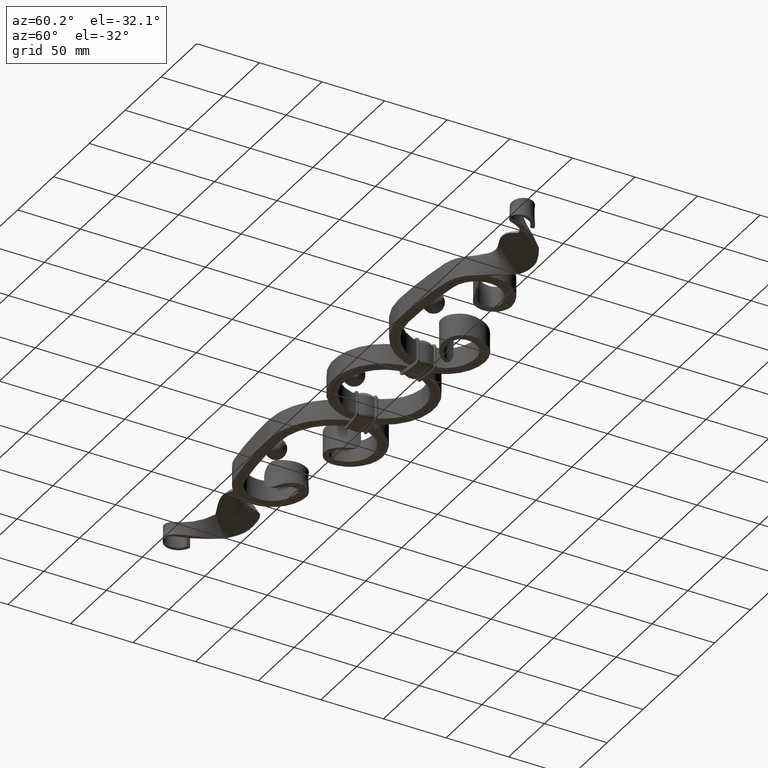
[diagram: clean part render]
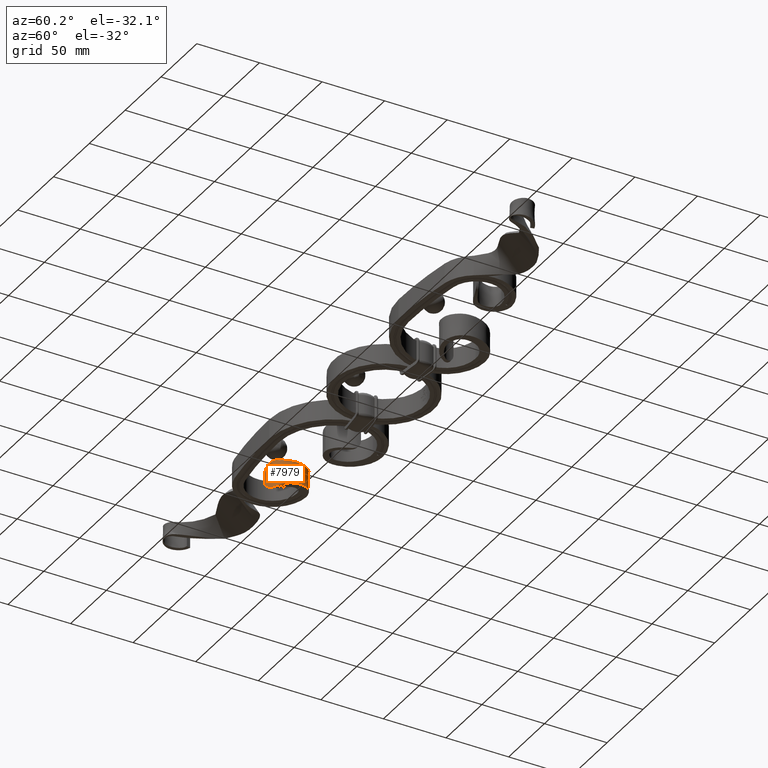
[diagram: same view with one face highlighted and labeled with its STEP entity id]
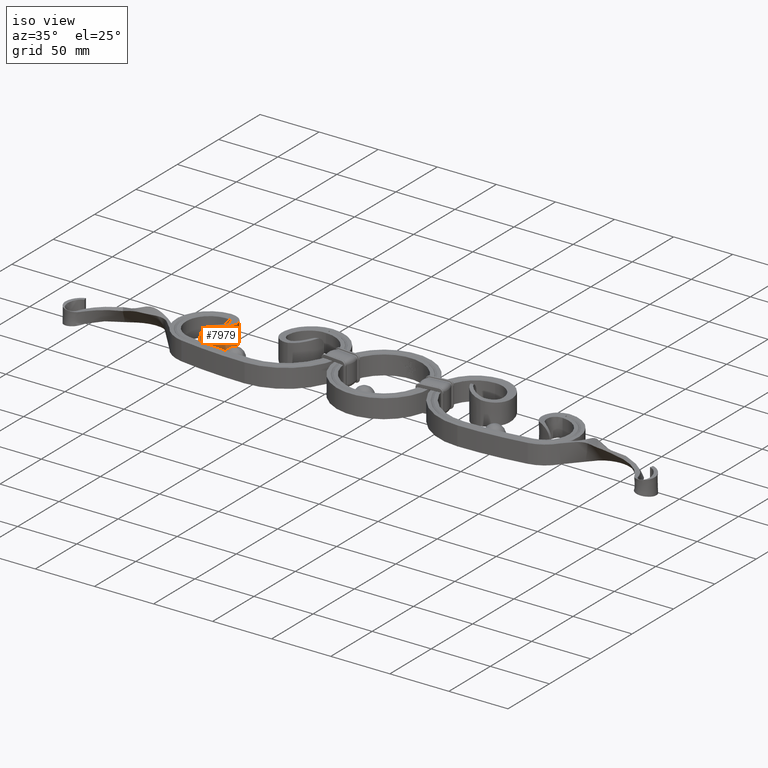
[diagram: same view with one face highlighted and labeled with its STEP entity id]
A machine part, auxiliary view. The second image highlights one B-rep face of the part: STEP entity #7979.
A second angle (iso view) of the same face is appended — the face is thin or edge-on in the first view.
In plain terms, the highlighted face is a freeform B-spline surface patch.
Its self-contained STEP definition (entity closure, byte-faithful):
#163 = CARTESIAN_POINT ( 'NONE',  ( -142.5820581351199507, -10.03990142041499034, 9.756518176342892090 ) ) ;
#231 = EDGE_LOOP ( 'NONE', ( #5789, #15579, #11772, #6545, #10943, #2353 ) ) ;
#237 = CARTESIAN_POINT ( 'NONE',  ( -143.0000000000000568, 19.99999999999979750, 7.999999999999992895 ) ) ;
#595 = CARTESIAN_POINT ( 'NONE',  ( -141.8930504535362047, -9.821205038435795842, -10.05455148957163836 ) ) ;
#738 = CARTESIAN_POINT ( 'NONE',  ( -134.9914572036392713, -7.643945574774448914, -9.602943142004265908 ) ) ;
#860 = CARTESIAN_POINT ( 'NONE',  ( -147.5508759720489707, -10.95988479929395254, -3.916098386823894550 ) ) ;
#1042 = B_SPLINE_CURVE_WITH_KNOTS ( 'NONE', 3,
 ( #1998, #4293, #6097, #8077, #15726, #17999, #23686 ),
 .UNSPECIFIED., .F., .F.,
 ( 4, 1, 1, 1, 4 ),
 ( 0.2957122959687936703, 0.3316709402509978588, 0.6343871724371231702, 0.8237507693815067089, 1.000000000000000000 ),
 .UNSPECIFIED. ) ;
#1143 = CARTESIAN_POINT ( 'NONE',  ( -148.0000000000000000, -10.99999999999999112, 14.00000000000000000 ) ) ;
#1689 = LINE ( 'NONE', #13026, #22317 ) ;
#1889 = CARTESIAN_POINT ( 'NONE',  ( -143.8640815421922809, -10.37723304603647634, 9.004674453201406692 ) ) ;
#1998 = CARTESIAN_POINT ( 'NONE',  ( -136.3810361022927395, -6.739554617377281787, -10.30263191994275651 ) ) ;
#2202 = CARTESIAN_POINT ( 'NONE',  ( -134.9914572036392713, -7.643945574774448914, 9.602943142004265908 ) ) ;
#2353 = ORIENTED_EDGE ( 'NONE', *, *, #24068, .F. ) ;
#2395 = CARTESIAN_POINT ( 'NONE',  ( -137.5565842926683331, -7.663301484599047697, -10.57385164034687897 ) ) ;
#2561 = CARTESIAN_POINT ( 'NONE',  ( -146.8210598597371188, -10.88209312687389207, -5.657826063741994815 ) ) ;
#2875 = EDGE_CURVE ( 'NONE', #6483, #21079, #1689, .T. ) ;
#3103 = VERTEX_POINT ( 'NONE', #7324 ) ;
#3283 = CARTESIAN_POINT ( 'NONE',  ( -139.0368065167331224, 19.62665739063314874, 7.916728258191672474 ) ) ;
#3770 = CARTESIAN_POINT ( 'NONE',  ( -146.0138830131227223, -10.77686500966501626, 6.922336502347793186 ) ) ;
#3940 = CARTESIAN_POINT ( 'NONE',  ( -148.0000000000000000, -10.99999999999999112, 0.9114874538766071232 ) ) ;
#4098 = CARTESIAN_POINT ( 'NONE',  ( -147.3021607282508114, -10.93509492323551946, 4.620931477051918534 ) ) ;
#4164 = CARTESIAN_POINT ( 'NONE',  ( -142.5755369081056756, -10.54609965658282711, 12.26858336404963978 ) ) ;
#4194 = CARTESIAN_POINT ( 'NONE',  ( -138.5144111300697034, -8.269496671405516253, -10.63566260118036944 ) ) ;
#4258 = FACE_OUTER_BOUND ( 'NONE', #231, .T. ) ;
#4293 = CARTESIAN_POINT ( 'NONE',  ( -136.0033088582169114, -6.422696243451727405, -10.19581120449527667 ) ) ;
#4343 = CARTESIAN_POINT ( 'NONE',  ( -132.6832019858948684, 17.10670278501570252, 2.636524242713373489 ) ) ;
#4451 = CARTESIAN_POINT ( 'NONE',  ( -141.5512035059770710, -9.702408052106871850, -10.17737492105919550 ) ) ;
#4538 = CARTESIAN_POINT ( 'NONE',  ( -136.9532656725694437, -7.219572233246065451, -10.46445761045312750 ) ) ;
#4779 = CARTESIAN_POINT ( 'NONE',  ( -148.0000000000000000, -10.99999999999999112, -0.9114874538765984635 ) ) ;
#5254 = CARTESIAN_POINT ( 'NONE',  ( -132.6832019858948684, 17.10670278501570252, 7.909572728140119580 ) ) ;
#5466 = VERTEX_POINT ( 'NONE', #10842 ) ;
#5789 = ORIENTED_EDGE ( 'NONE', *, *, #17986, .T. ) ;
#5830 = CARTESIAN_POINT ( 'NONE',  ( -140.8960473661454671, -9.452699539818421925, 10.37107400702388382 ) ) ;
#5911 = CARTESIAN_POINT ( 'NONE',  ( -136.9541973452140837, -7.220353771469365967, 10.46472108612248775 ) ) ;
#5991 = CARTESIAN_POINT ( 'NONE',  ( -148.0000000000000568, -10.99999999999999467, 1.677149247104398722 ) ) ;
#6075 = CARTESIAN_POINT ( 'NONE',  ( -139.5212205385999766, -8.841509373601251554, 10.62634569374910498 ) ) ;
#6097 = CARTESIAN_POINT ( 'NONE',  ( -132.5250822567038540, -3.249572173495299143, -9.244978845721277594 ) ) ;
#6182 = CARTESIAN_POINT ( 'NONE',  ( -145.5239889200942116, -10.70165594760631578, -7.521933616385438448 ) ) ;
#6238 = CARTESIAN_POINT ( 'NONE',  ( -143.0000000000000568, 19.99999999999979750, 2.666666666666662078 ) ) ;
#6431 = CARTESIAN_POINT ( 'NONE',  ( -145.2691968606120270, -10.65943815623261059, -7.798629706362246949 ) ) ;
#6483 = VERTEX_POINT ( 'NONE', #7040 ) ;
#6545 = ORIENTED_EDGE ( 'NONE', *, *, #21929, .F. ) ;
#7040 = CARTESIAN_POINT ( 'NONE',  ( -142.9999999999999716, 19.99999999999979394, 8.000000000000000000 ) ) ;
#7053 = EDGE_CURVE ( 'NONE', #6483, #15628, #18899, .T. ) ;
#7080 = CARTESIAN_POINT ( 'NONE',  ( -142.9999999999999716, 19.99999999999979394, -8.000000000000000000 ) ) ;
#7324 = CARTESIAN_POINT ( 'NONE',  ( -148.0000000000000000, -10.99999999999999112, 0.9114874538766071232 ) ) ;
#7702 = CARTESIAN_POINT ( 'NONE',  ( -136.3810361022927395, -6.739554617377281787, -10.30263191994275651 ) ) ;
#7979 = ADVANCED_FACE ( 'NONE', ( #4258 ), #14340, .F. ) ;
#8056 = CARTESIAN_POINT ( 'NONE',  ( -136.3810361022927680, -6.739554617377302215, 10.30263191994276184 ) ) ;
#8077 = CARTESIAN_POINT ( 'NONE',  ( -128.1210013997462056, 4.597237898486772778, -8.605780127499995658 ) ) ;
#8151 = CARTESIAN_POINT ( 'NONE',  ( -139.8537765661831429, -8.992358551902723818, -10.56924763057872063 ) ) ;
#8210 = CARTESIAN_POINT ( 'NONE',  ( -142.5755369081056756, -10.54609965658282711, 4.089527788016545706 ) ) ;
#8298 = CARTESIAN_POINT ( 'NONE',  ( -139.0368065167331224, 19.62665739063314874, 2.638909419397222234 ) ) ;
#8324 = CARTESIAN_POINT ( 'NONE',  ( -140.5314750337523719, -9.301149606279585313, -10.45502827826089920 ) ) ;
#8352 = VECTOR ( 'NONE', #24979, 1000.000000000000000 ) ;
#8373 = CARTESIAN_POINT ( 'NONE',  ( -136.3810361022927680, -6.739554617377302215, 10.30263191994276184 ) ) ;
#8548 = VERTEX_POINT ( 'NONE', #7702 ) ;
#8728 = CARTESIAN_POINT ( 'NONE',  ( -139.0368065167331224, 19.62665739063314874, -7.916728258191674250 ) ) ;
#8892 = CARTESIAN_POINT ( 'NONE',  ( -136.3810361022927680, -6.739554617377302215, 10.30263191994276184 ) ) ;
#9135 = CARTESIAN_POINT ( 'NONE',  ( -142.9999999999999716, 19.99999999999979394, 8.000000000000000000 ) ) ;
#10149 = CARTESIAN_POINT ( 'NONE',  ( -143.5419053276866634, -10.30623715886480696, -9.247213314563383690 ) ) ;
#10286 = CARTESIAN_POINT ( 'NONE',  ( -134.9914572036392713, -7.643945574774448914, -3.200981047334753971 ) ) ;
#10735 = CARTESIAN_POINT ( 'NONE',  ( -147.2984445079092097, -10.93470803497979738, -4.629918503084190284 ) ) ;
#10842 = CARTESIAN_POINT ( 'NONE',  ( -148.0000000000000000, -10.99999999999999112, -0.9114874538765984635 ) ) ;
#10943 = ORIENTED_EDGE ( 'NONE', *, *, #20194, .F. ) ;
#11772 = ORIENTED_EDGE ( 'NONE', *, *, #7053, .T. ) ;
#11832 = CARTESIAN_POINT ( 'NONE',  ( -145.2921994246881354, -10.66621084452023993, 7.807198318082774868 ) ) ;
#12100 = CARTESIAN_POINT ( 'NONE',  ( -146.0012225963424726, -10.77501433129907582, -6.938878489202576993 ) ) ;
#12151 = CARTESIAN_POINT ( 'NONE',  ( -148.0000000000000000, -10.99999999999999112, 4.666666666666666963 ) ) ;
#12353 = CARTESIAN_POINT ( 'NONE',  ( -142.9040175917695024, -10.14266928967459336, -9.618661625300227058 ) ) ;
#12773 = CARTESIAN_POINT ( 'NONE',  ( -147.9144973279268811, -10.99315107831905003, -2.432343897136739486 ) ) ;
#12869 = CARTESIAN_POINT ( 'NONE',  ( -148.0000000000000000, -10.99999999999999112, -1.677201566385473352 ) ) ;
#13026 = CARTESIAN_POINT ( 'NONE',  ( -142.9999999999999716, 19.99999999999979394, 8.000000000000000000 ) ) ;
#13372 = B_SPLINE_CURVE_WITH_KNOTS ( 'NONE', 3,
 ( #16210, #4538, #2395, #4194, #20244, #20090, #8151, #8324, #17907, #4451, #595, #12353, #10149, #18166, #23934, #6431, #6182, #12100, #22176, #14339, #2561, #18248, #10735, #860, #20335, #12773, #12869, #4779 ),
 .UNSPECIFIED., .F., .F.,
 ( 4, 2, 2, 2, 2, 2, 2, 2, 2, 2, 2, 2, 2, 4 ),
 ( 0.000000000000000000, 0.002266824986450747658, 0.003400237479676122138, 0.004533649972901497051, 0.005667062466126871964, 0.006800474959352246010, 0.009067299945802995836, 0.01020071243902837162, 0.01133412493225374913, 0.01246753742547912838, 0.01360094991870450416, 0.01473436241192988168, 0.01586777490515526093, 0.01813459989160601596 ),
 .UNSPECIFIED. ) ;
#13810 = CARTESIAN_POINT ( 'NONE',  ( -141.9171829083113892, -9.829248335886148880, 10.04505150606705577 ) ) ;
#13972 = CARTESIAN_POINT ( 'NONE',  ( -139.0368065167331224, 19.62665739063314874, 7.916728258191670697 ) ) ;
#14064 = CARTESIAN_POINT ( 'NONE',  ( -128.1210013997462056, 4.597237898486772778, 8.605780127499993881 ) ) ;
#14310 = CARTESIAN_POINT ( 'NONE',  ( -142.5755369081056756, -10.54609965658282711, -4.089527788016545706 ) ) ;
#14339 = CARTESIAN_POINT ( 'NONE',  ( -146.6351637312550338, -10.85988565105924231, -5.989601564320951255 ) ) ;
#14340 = B_SPLINE_SURFACE_WITH_KNOTS ( 'NONE', 3, 3, ( 
 ( #237, #13972, #19801, #14064, #2202, #4164, #19895 ),
 ( #6238, #8298, #4343, #21802, #19979, #8210, #12151 ),
 ( #21977, #23737, #23998, #18045, #10286, #14310, #18473 ),
 ( #16267, #8728, #24257, #20220, #738, #22412, #24510 ) ),
 .UNSPECIFIED., .F., .F., .F.,
 ( 4, 4 ),
 ( 4, 1, 1, 1, 4 ),
 ( 0.000000000000000000, 1.000000000000000000 ),
 ( 0.000000000000000000, 0.1762492306184933188, 0.3656128275628768298, 0.6683290597490021412, 1.000000000000000000 ),
 .UNSPECIFIED. ) ;
#15579 = ORIENTED_EDGE ( 'NONE', *, *, #2875, .F. ) ;
#15628 = VERTEX_POINT ( 'NONE', #8373 ) ;
#15705 = CARTESIAN_POINT ( 'NONE',  ( -142.9093978490246002, -10.13394213928059173, 9.590752452812623119 ) ) ;
#15726 = CARTESIAN_POINT ( 'NONE',  ( -132.6832019858948684, 17.10670278501570252, -7.909572728140119580 ) ) ;
#16210 = CARTESIAN_POINT ( 'NONE',  ( -136.3810361022927395, -6.739554617377281787, -10.30263191994275651 ) ) ;
#16267 = CARTESIAN_POINT ( 'NONE',  ( -143.0000000000000568, 19.99999999999979750, -8.000000000000000000 ) ) ;
#16607 = LINE ( 'NONE', #1143, #8352 ) ;
#17643 = CARTESIAN_POINT ( 'NONE',  ( -147.9145063548248515, -10.99313955765780371, 2.428352096602429899 ) ) ;
#17808 = CARTESIAN_POINT ( 'NONE',  ( -147.6616190585709489, -10.97022345498964313, 3.534035510201150920 ) ) ;
#17907 = CARTESIAN_POINT ( 'NONE',  ( -140.8713022596209328, -9.442658564155971490, -10.37723054885068130 ) ) ;
#17986 = EDGE_CURVE ( 'NONE', #8548, #21079, #1042, .T. ) ;
#17999 = CARTESIAN_POINT ( 'NONE',  ( -139.0368065167331224, 19.62665739063314874, -7.916728258191674250 ) ) ;
#18045 = CARTESIAN_POINT ( 'NONE',  ( -128.1210013997462056, 4.597237898486772778, -2.868593375833331738 ) ) ;
#18166 = CARTESIAN_POINT ( 'NONE',  ( -144.4377441153320092, -10.50288016781941103, -8.569222617371069717 ) ) ;
#18248 = CARTESIAN_POINT ( 'NONE',  ( -147.1525073436492335, -10.91948475940760233, -4.978290907192437054 ) ) ;
#18473 = CARTESIAN_POINT ( 'NONE',  ( -148.0000000000000000, -10.99999999999999112, -4.666666666666666963 ) ) ;
#18899 = B_SPLINE_CURVE_WITH_KNOTS ( 'NONE', 3,
 ( #9135, #3283, #5254, #18980, #23010, #24987, #8892 ),
 .UNSPECIFIED., .F., .F.,
 ( 4, 1, 1, 1, 4 ),
 ( 0.000000000000000000, 0.1762492306184933188, 0.3656128275628768298, 0.6683290597490021412, 0.7042877040312067738 ),
 .UNSPECIFIED. ) ;
#18980 = CARTESIAN_POINT ( 'NONE',  ( -128.1210013997462056, 4.597237898486772778, 8.605780127499993881 ) ) ;
#19468 = CARTESIAN_POINT ( 'NONE',  ( -144.7534762312741634, -10.57160277344467580, 8.327542025312189011 ) ) ;
#19642 = CARTESIAN_POINT ( 'NONE',  ( -147.5561432197619069, -10.96039331051206389, 3.899627477027002964 ) ) ;
#19801 = CARTESIAN_POINT ( 'NONE',  ( -132.6832019858948684, 17.10670278501570252, 7.909572728140119580 ) ) ;
#19818 = CARTESIAN_POINT ( 'NONE',  ( -146.2362649035652566, -10.80785031765109849, 6.614076992135493605 ) ) ;
#19895 = CARTESIAN_POINT ( 'NONE',  ( -148.0000000000000000, -10.99999999999999112, 14.00000000000000000 ) ) ;
#19979 = CARTESIAN_POINT ( 'NONE',  ( -134.9914572036392713, -7.643945574774448914, 3.200981047334754859 ) ) ;
#20090 = CARTESIAN_POINT ( 'NONE',  ( -139.5159042898674215, -8.825073456809175099, -10.60565870225659957 ) ) ;
#20194 = EDGE_CURVE ( 'NONE', #5466, #3103, #16607, .T. ) ;
#20220 = CARTESIAN_POINT ( 'NONE',  ( -128.1210013997462056, 4.597237898486772778, -8.605780127499995658 ) ) ;
#20244 = CARTESIAN_POINT ( 'NONE',  ( -138.8435942028963552, -8.462276345353304308, -10.63903944035322446 ) ) ;
#20335 = CARTESIAN_POINT ( 'NONE',  ( -147.6577031213442979, -10.96986228949591435, -3.549135033812041318 ) ) ;
#21079 = VERTEX_POINT ( 'NONE', #7080 ) ;
#21459 = CARTESIAN_POINT ( 'NONE',  ( -138.8545814647492875, -8.483887353661177855, 10.65657752915794276 ) ) ;
#21549 = CARTESIAN_POINT ( 'NONE',  ( -141.5796421361823434, -9.712637816745965935, 10.16780780618841895 ) ) ;
#21639 = CARTESIAN_POINT ( 'NONE',  ( -137.5629800894241157, -7.668228863106498316, 10.57527980618545627 ) ) ;
#21802 = CARTESIAN_POINT ( 'NONE',  ( -128.1210013997462056, 4.597237898486772778, 2.868593375833330850 ) ) ;
#21929 = EDGE_CURVE ( 'NONE', #3103, #15628, #23145, .T. ) ;
#21977 = CARTESIAN_POINT ( 'NONE',  ( -143.0000000000000568, 19.99999999999979750, -2.666666666666669183 ) ) ;
#22176 = CARTESIAN_POINT ( 'NONE',  ( -146.2236666818178890, -10.80614208519914854, -6.632519765258504840 ) ) ;
#22317 = VECTOR ( 'NONE', #22874, 1000.000000000000000 ) ;
#22412 = CARTESIAN_POINT ( 'NONE',  ( -142.5755369081056756, -10.54609965658282711, -12.26858336404963978 ) ) ;
#22874 = DIRECTION ( 'NONE',  ( 0.000000000000000000, 0.000000000000000000, -1.000000000000000000 ) ) ;
#23010 = CARTESIAN_POINT ( 'NONE',  ( -132.5250822567038540, -3.249572173495304916, 9.244978845721277594 ) ) ;
#23145 = B_SPLINE_CURVE_WITH_KNOTS ( 'NONE', 3,
 ( #3940, #5991, #17643, #17808, #19642, #4098, #23667, #23500, #25396, #19818, #3770, #11832, #19468, #1889, #23752, #15705, #163, #13810, #21549, #5830, #23586, #6075, #21459, #21639, #5911, #8056 ),
 .UNSPECIFIED., .F., .F.,
 ( 4, 2, 2, 2, 2, 2, 2, 2, 2, 2, 2, 2, 4 ),
 ( 0.000000000000000000, 0.002265021536453862977, 0.003397532304680785792, 0.004530043072907709474, 0.005662553841134633156, 0.006795064609361555971, 0.009060086145815405070, 0.01019259691404229493, 0.01132510768226918652, 0.01245761845049607811, 0.01359012921872296970, 0.01585515075517668002, 0.01812017229163039034 ),
 .UNSPECIFIED. ) ;
#23500 = CARTESIAN_POINT ( 'NONE',  ( -146.8255960981297790, -10.88262451123584995, 5.649293068713173938 ) ) ;
#23586 = CARTESIAN_POINT ( 'NONE',  ( -140.5477591123126047, -9.308220224978144941, 10.45174420287985306 ) ) ;
#23667 = CARTESIAN_POINT ( 'NONE',  ( -147.1558031440280558, -10.91983646056447732, 4.970748221507067299 ) ) ;
#23686 = CARTESIAN_POINT ( 'NONE',  ( -142.9999999999999716, 19.99999999999979394, -8.000000000000000000 ) ) ;
#23737 = CARTESIAN_POINT ( 'NONE',  ( -139.0368065167331224, 19.62665739063314874, -2.638909419397225786 ) ) ;
#23752 = CARTESIAN_POINT ( 'NONE',  ( -143.5518539844196084, -10.30302138825878799, 9.214167661114693431 ) ) ;
#23934 = CARTESIAN_POINT ( 'NONE',  ( -144.7270476003162401, -10.56027934193204842, -8.321652881078112074 ) ) ;
#23998 = CARTESIAN_POINT ( 'NONE',  ( -132.6832019858948684, 17.10670278501570252, -2.636524242713372157 ) ) ;
#24068 = EDGE_CURVE ( 'NONE', #8548, #5466, #13372, .T. ) ;
#24257 = CARTESIAN_POINT ( 'NONE',  ( -132.6832019858948684, 17.10670278501570252, -7.909572728140119580 ) ) ;
#24510 = CARTESIAN_POINT ( 'NONE',  ( -148.0000000000000000, -10.99999999999999112, -14.00000000000000000 ) ) ;
#24979 = DIRECTION ( 'NONE',  ( 0.000000000000000000, 0.000000000000000000, 1.000000000000000000 ) ) ;
#24987 = CARTESIAN_POINT ( 'NONE',  ( -136.0033088582169114, -6.422696243451734510, 10.19581120449528022 ) ) ;
#25396 = CARTESIAN_POINT ( 'NONE',  ( -146.6417439048250344, -10.86067916766891450, 5.978020224883748845 ) ) ;